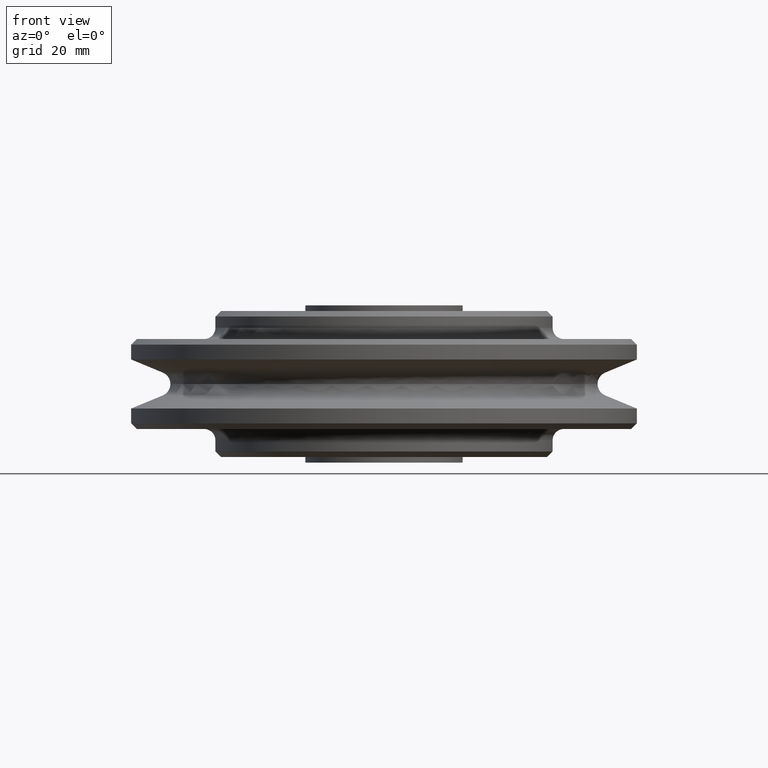
[diagram: clean part render]
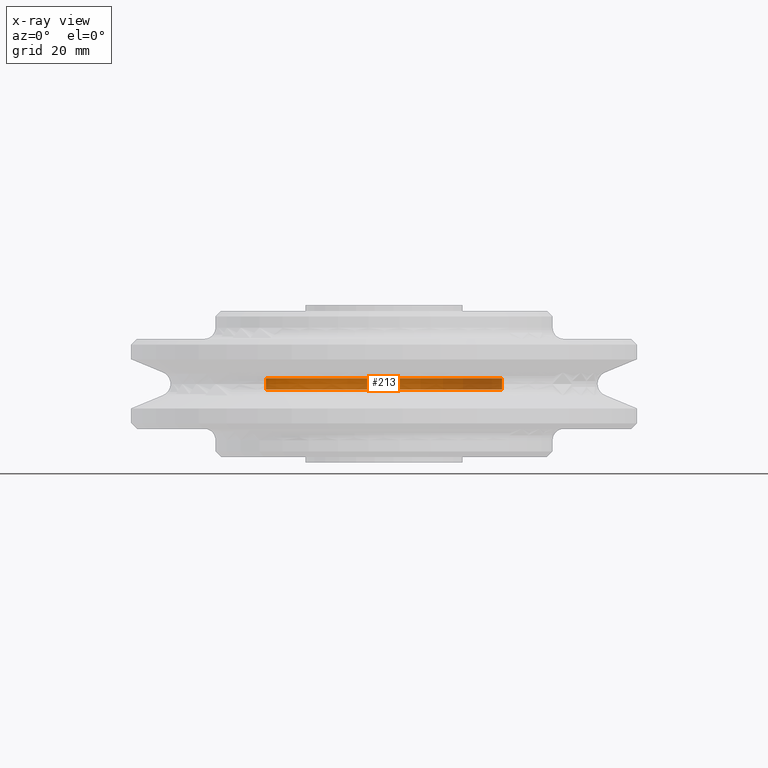
[diagram: x-ray — body ghosted, one internal face saturated and labeled with its STEP entity id]
A machine part, front view, then the same camera in x-ray: the body is ghosted and one INTERNAL B-rep face — a face not visible from any outside direction — is saturated and labeled: STEP entity #213.
In plain terms, the highlighted cylindrical surface (partial cylindrical patch) has radius 21 mm, axis along (0, 0, 1).
Its self-contained STEP definition (entity closure, byte-faithful):
#213=ADVANCED_FACE('',(#514),#515,.F.);
#514=FACE_OUTER_BOUND('',#924,.T.);
#515=CYLINDRICAL_SURFACE('',#925,21.0);
#924=EDGE_LOOP('',(#1483,#1484,#1485,#1486));
#925=AXIS2_PLACEMENT_3D('',#1487,#1488,#1489);
#1483=ORIENTED_EDGE('',*,*,#2709,.F.);
#1484=ORIENTED_EDGE('',*,*,#2710,.T.);
#1485=ORIENTED_EDGE('',*,*,#2711,.F.);
#1486=ORIENTED_EDGE('',*,*,#2712,.T.);
#1487=CARTESIAN_POINT('',(0.0,0.0,0.0));
#1488=DIRECTION('',(0.0,0.0,1.0));
#1489=DIRECTION('',(1.0,0.0,0.0));
#2709=EDGE_CURVE('',#3346,#3347,#3348,.T.);
#2710=EDGE_CURVE('',#3346,#3349,#3350,.T.);
#2711=EDGE_CURVE('',#3351,#3349,#3352,.T.);
#2712=EDGE_CURVE('',#3351,#3347,#3353,.T.);
#3346=VERTEX_POINT('',#5015);
#3347=VERTEX_POINT('',#5016);
#3348=LINE('',#5017,#5018);
#3349=VERTEX_POINT('',#5019);
#3350=CIRCLE('',#5020,21.0);
#3351=VERTEX_POINT('',#5021);
#3352=LINE('',#5022,#5023);
#3353=CIRCLE('',#5024,21.0);
#5015=CARTESIAN_POINT('',(21.0,0.0,1.0));
#5016=CARTESIAN_POINT('',(21.0,0.0,-1.0));
#5017=CARTESIAN_POINT('',(21.0,-2.57175827820944E-015,0.0));
#5018=VECTOR('',#8300,1.0);
#5019=CARTESIAN_POINT('',(-21.0,2.57175827820944E-015,1.0));
#5020=AXIS2_PLACEMENT_3D('',#8301,#8302,#8303);
#5021=CARTESIAN_POINT('',(-21.0,2.57175827820944E-015,-1.0));
#5022=CARTESIAN_POINT('',(-21.0,2.57175827820944E-015,0.0));
#5023=VECTOR('',#8304,1.0);
#5024=AXIS2_PLACEMENT_3D('',#8305,#8306,#8307);
#8300=DIRECTION('',(-0.0,0.0,-1.0));
#8301=CARTESIAN_POINT('',(0.0,0.0,1.0));
#8302=DIRECTION('',(0.0,-0.0,1.0));
#8303=DIRECTION('',(1.0,0.0,0.0));
#8304=DIRECTION('',(-0.0,0.0,1.0));
#8305=CARTESIAN_POINT('',(0.0,0.0,-1.0));
#8306=DIRECTION('',(0.0,0.0,-1.0));
#8307=DIRECTION('',(1.0,0.0,0.0));